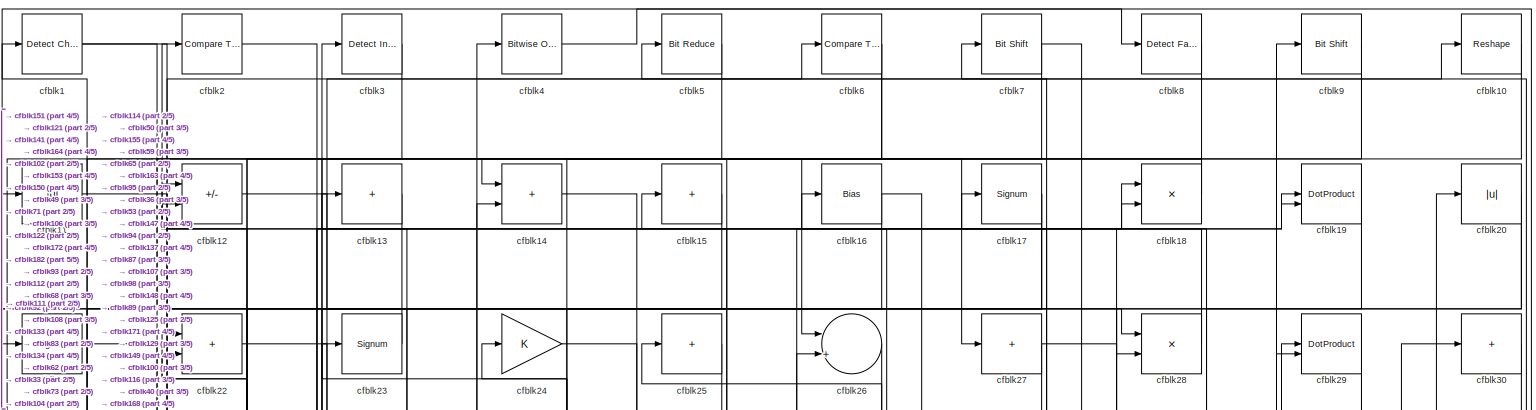
[diagram: root canvas - part 1/5, full width, top band]
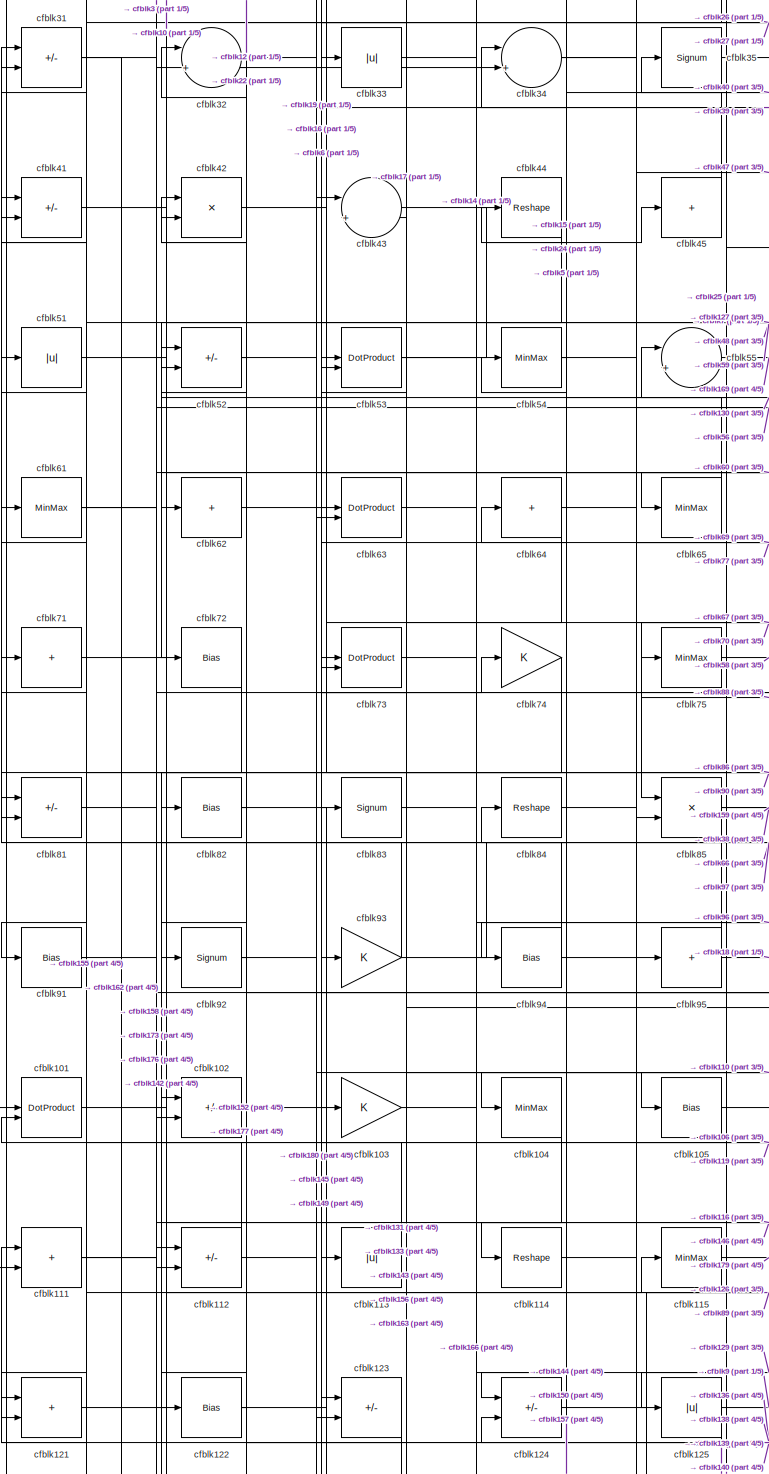
[diagram: root canvas - part 2/5, middle left region]
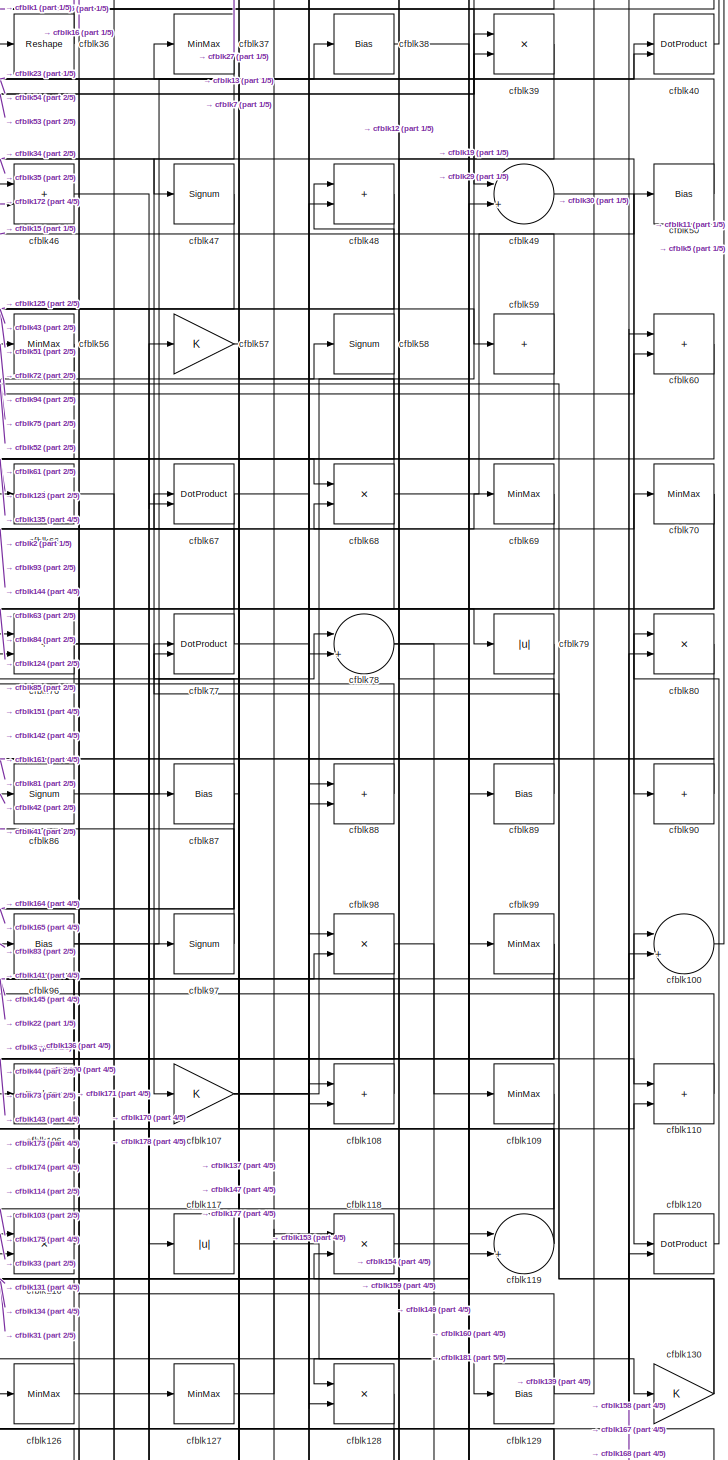
[diagram: root canvas - part 3/5, middle right region]
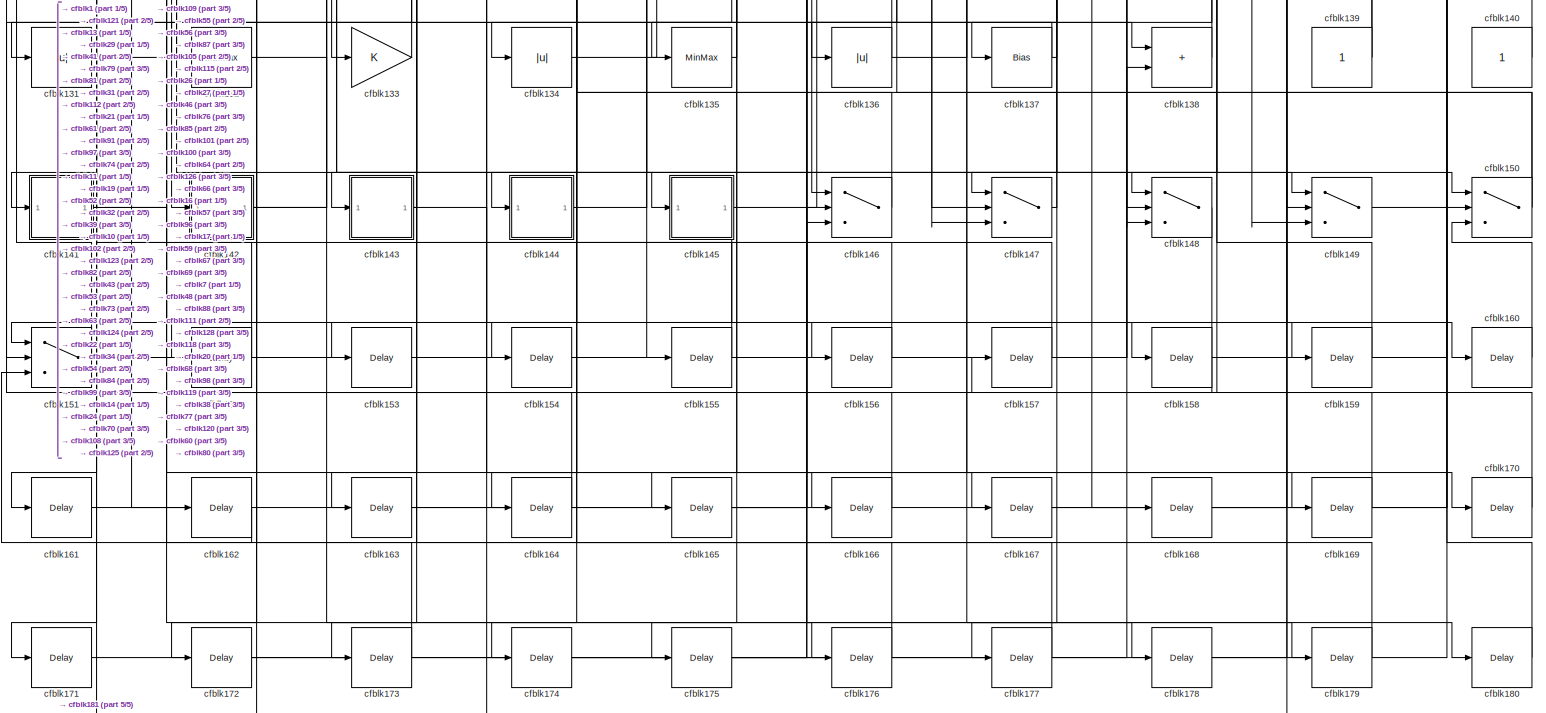
[diagram: root canvas - part 4/5, full width, bottom band]
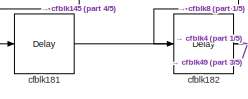
[diagram: root canvas - part 5/5, bottom left region]
MODEL slx_3d7208c3f43e
KIND model
CONFIG AbsTol = auto
CONFIG EnableMultiTasking = off
CONFIG FixedStep = auto
CONFIG MaxStep = auto
CONFIG MinStep = auto
CONFIG RelTol = 1e-3
CONFIG SampleTimeConstraint = Unconstrained
CONFIG SolverName = VariableStepAuto
CONFIG StartTime = 0.0
CONFIG StopTime = 10.0
BLOCK [Reference] cfblk1  REF=simulink/Logic and Bit
Operations/Detect
Change
  LibrarySourceBlock = hdlsllib/Logic and Bit\nOperations/Detect\nChange
  SourceBlock = simulink/Logic and Bit\nOperations/Detect\nChange
  SourceType = Detect Change
BLOCK [Reshape] cfblk10
BLOCK [Sum] cfblk100
  Inputs = |++
BLOCK [DotProduct] cfblk101
  OutDataTypeStr = Inherit: Inherit via internal rule
BLOCK [Sum] cfblk102
  IconShape = rectangular
  Inputs = +-
BLOCK [Gain] cfblk103
BLOCK [MinMax] cfblk104
BLOCK [Bias] cfblk105
  Bias = 0.0
  SaturateOnIntegerOverflow = off
BLOCK [Reshape] cfblk106
BLOCK [Gain] cfblk107
BLOCK [Sum] cfblk108
  IconShape = rectangular
BLOCK [MinMax] cfblk109
BLOCK [Abs] cfblk11
  SaturateOnIntegerOverflow = off
BLOCK [Sum] cfblk110
  IconShape = rectangular
BLOCK [Sum] cfblk111
  IconShape = rectangular
BLOCK [Sum] cfblk112
  IconShape = rectangular
  Inputs = +-
BLOCK [Abs] cfblk113
  SaturateOnIntegerOverflow = off
BLOCK [Reshape] cfblk114
BLOCK [MinMax] cfblk115
BLOCK [Product] cfblk116
  Inputs = */
  RndMeth = Zero
  SaturateOnIntegerOverflow = on
BLOCK [Abs] cfblk117
  SaturateOnIntegerOverflow = off
BLOCK [Product] cfblk118
  Inputs = */
  RndMeth = Zero
  SaturateOnIntegerOverflow = on
BLOCK [Sum] cfblk119
  Inputs = |++
BLOCK [Sum] cfblk12
  IconShape = rectangular
  Inputs = +-
BLOCK [DotProduct] cfblk120
  OutDataTypeStr = Inherit: Inherit via internal rule
BLOCK [Sum] cfblk121
  IconShape = rectangular
BLOCK [Bias] cfblk122
  Bias = 0.0
  SaturateOnIntegerOverflow = off
BLOCK [Sum] cfblk123
  IconShape = rectangular
  Inputs = +-
BLOCK [Sum] cfblk124
  IconShape = rectangular
  Inputs = +-
BLOCK [Abs] cfblk125
  SaturateOnIntegerOverflow = off
BLOCK [MinMax] cfblk126
BLOCK [MinMax] cfblk127
BLOCK [Product] cfblk128
  Inputs = */
  RndMeth = Zero
  SaturateOnIntegerOverflow = on
BLOCK [Bias] cfblk129
  Bias = 0.0
  SaturateOnIntegerOverflow = off
BLOCK [Sum] cfblk13
  IconShape = rectangular
  Inputs = +
BLOCK [Gain] cfblk130
BLOCK [Abs] cfblk131
  SaturateOnIntegerOverflow = off
BLOCK [MinMax] cfblk132
BLOCK [Gain] cfblk133
BLOCK [Abs] cfblk134
  SaturateOnIntegerOverflow = off
BLOCK [MinMax] cfblk135
BLOCK [Abs] cfblk136
  SaturateOnIntegerOverflow = off
BLOCK [Bias] cfblk137
  Bias = 0.0
  SaturateOnIntegerOverflow = off
BLOCK [Sum] cfblk138
  IconShape = rectangular
BLOCK [Constant] cfblk139
  SampleTime = -1
BLOCK [Sum] cfblk14
  IconShape = rectangular
BLOCK [Constant] cfblk140
  SampleTime = -1
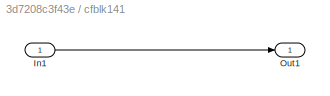
BLOCK [SubSystem] cfblk141
  LibrarySourceBlock = hdlsllib/Ports &\nSubsystems/Subsystem
BLOCK [Inport] cfblk141/In1
BLOCK [Outport] cfblk141/Out1
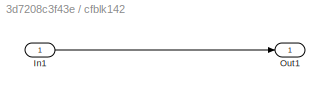
BLOCK [SubSystem] cfblk142
  LibrarySourceBlock = hdlsllib/Ports &\nSubsystems/Subsystem
BLOCK [Inport] cfblk142/In1
BLOCK [Outport] cfblk142/Out1
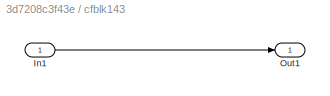
BLOCK [SubSystem] cfblk143
  LibrarySourceBlock = hdlsllib/Ports &\nSubsystems/Subsystem
BLOCK [Inport] cfblk143/In1
BLOCK [Outport] cfblk143/Out1
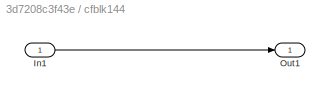
BLOCK [SubSystem] cfblk144
  LibrarySourceBlock = hdlsllib/Ports &\nSubsystems/Subsystem
BLOCK [Inport] cfblk144/In1
BLOCK [Outport] cfblk144/Out1
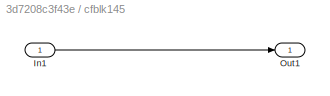
BLOCK [SubSystem] cfblk145
  LibrarySourceBlock = hdlsllib/Ports &\nSubsystems/Subsystem
BLOCK [Inport] cfblk145/In1
BLOCK [Outport] cfblk145/Out1
BLOCK [Switch] cfblk146
  InputSameDT = off
  SaturateOnIntegerOverflow = off
BLOCK [Switch] cfblk147
  InputSameDT = off
  SaturateOnIntegerOverflow = off
BLOCK [Switch] cfblk148
  InputSameDT = off
  SaturateOnIntegerOverflow = off
BLOCK [Switch] cfblk149
  InputSameDT = off
  SaturateOnIntegerOverflow = off
BLOCK [Sum] cfblk15
  IconShape = rectangular
  Inputs = +
BLOCK [Switch] cfblk150
  InputSameDT = off
  SaturateOnIntegerOverflow = off
BLOCK [Switch] cfblk151
  InputSameDT = off
  SaturateOnIntegerOverflow = off
BLOCK [Delay] cfblk152
  InputPortMap = u0
  SampleTime = 1
BLOCK [Delay] cfblk153
  InputPortMap = u0
  SampleTime = 1
BLOCK [Delay] cfblk154
  InputPortMap = u0
  SampleTime = 1
BLOCK [Delay] cfblk155
  InputPortMap = u0
  SampleTime = 1
BLOCK [Delay] cfblk156
  InputPortMap = u0
  SampleTime = 1
BLOCK [Delay] cfblk157
  InputPortMap = u0
  SampleTime = 1
BLOCK [Delay] cfblk158
  InputPortMap = u0
  SampleTime = 1
BLOCK [Delay] cfblk159
  InputPortMap = u0
  SampleTime = 1
BLOCK [Bias] cfblk16
  Bias = 0.0
  SaturateOnIntegerOverflow = off
BLOCK [Delay] cfblk160
  InputPortMap = u0
  SampleTime = 1
BLOCK [Delay] cfblk161
  InputPortMap = u0
  SampleTime = 1
BLOCK [Delay] cfblk162
  InputPortMap = u0
  SampleTime = 1
BLOCK [Delay] cfblk163
  InputPortMap = u0
  SampleTime = 1
BLOCK [Delay] cfblk164
  InputPortMap = u0
  SampleTime = 1
BLOCK [Delay] cfblk165
  InputPortMap = u0
  SampleTime = 1
BLOCK [Delay] cfblk166
  InputPortMap = u0
  SampleTime = 1
BLOCK [Delay] cfblk167
  InputPortMap = u0
  SampleTime = 1
BLOCK [Delay] cfblk168
  InputPortMap = u0
  SampleTime = 1
BLOCK [Delay] cfblk169
  InputPortMap = u0
  SampleTime = 1
BLOCK [Signum] cfblk17
BLOCK [Delay] cfblk170
  InputPortMap = u0
  SampleTime = 1
BLOCK [Delay] cfblk171
  InputPortMap = u0
  SampleTime = 1
BLOCK [Delay] cfblk172
  InputPortMap = u0
  SampleTime = 1
BLOCK [Delay] cfblk173
  InputPortMap = u0
  SampleTime = 1
BLOCK [Delay] cfblk174
  InputPortMap = u0
  SampleTime = 1
BLOCK [Delay] cfblk175
  InputPortMap = u0
  SampleTime = 1
BLOCK [Delay] cfblk176
  InputPortMap = u0
  SampleTime = 1
BLOCK [Delay] cfblk177
  InputPortMap = u0
  SampleTime = 1
BLOCK [Delay] cfblk178
  InputPortMap = u0
  SampleTime = 1
BLOCK [Delay] cfblk179
  InputPortMap = u0
  SampleTime = 1
BLOCK [Product] cfblk18
  Inputs = */
  RndMeth = Zero
  SaturateOnIntegerOverflow = on
BLOCK [Delay] cfblk180
  InputPortMap = u0
  SampleTime = 1
BLOCK [Delay] cfblk181
  InputPortMap = u0
  SampleTime = 1
BLOCK [Delay] cfblk182
  InputPortMap = u0
  SampleTime = 1
BLOCK [DotProduct] cfblk19
  OutDataTypeStr = Inherit: Inherit via internal rule
BLOCK [Reference] cfblk2  REF=hdlsllib/Logic and Bit
Operations/Compare
To Constant
  SourceBlock = hdlsllib/Logic and Bit\nOperations/Compare\nTo Constant
  SourceType = Compare To Constant
BLOCK [Abs] cfblk20
  SaturateOnIntegerOverflow = off
BLOCK [Signum] cfblk21
BLOCK [Sum] cfblk22
  IconShape = rectangular
BLOCK [Signum] cfblk23
BLOCK [Gain] cfblk24
BLOCK [Sum] cfblk25
  IconShape = rectangular
  Inputs = +
BLOCK [Sum] cfblk26
  Inputs = |++
BLOCK [Sum] cfblk27
  IconShape = rectangular
  Inputs = +
BLOCK [Product] cfblk28
  Inputs = */
  RndMeth = Zero
  SaturateOnIntegerOverflow = on
BLOCK [DotProduct] cfblk29
  OutDataTypeStr = Inherit: Inherit via internal rule
BLOCK [Reference] cfblk3  REF=simulink/Logic and Bit
Operations/Detect
Increase
  LibrarySourceBlock = hdlsllib/Logic and Bit\nOperations/Detect\nIncrease
  SourceBlock = simulink/Logic and Bit\nOperations/Detect\nIncrease
  SourceType = Detect Increase
BLOCK [Sum] cfblk30
  IconShape = rectangular
  Inputs = +
BLOCK [Sum] cfblk31
  IconShape = rectangular
  Inputs = +-
BLOCK [Sum] cfblk32
  Inputs = |++
BLOCK [Abs] cfblk33
  SaturateOnIntegerOverflow = off
BLOCK [Sum] cfblk34
  Inputs = |++
BLOCK [Signum] cfblk35
BLOCK [Reshape] cfblk36
BLOCK [MinMax] cfblk37
BLOCK [Bias] cfblk38
  Bias = 0.0
  SaturateOnIntegerOverflow = off
BLOCK [Product] cfblk39
  Inputs = */
  RndMeth = Zero
  SaturateOnIntegerOverflow = on
BLOCK [Reference] cfblk4  REF=simulink/Logic and Bit
Operations/Bitwise
Operator
  LibrarySourceBlock = hdlsllib/Logic and Bit\nOperations/Bitwise\nOperator
  SourceBlock = simulink/Logic and Bit\nOperations/Bitwise\nOperator
  SourceType = Bitwise Operator
BLOCK [DotProduct] cfblk40
  OutDataTypeStr = Inherit: Inherit via internal rule
BLOCK [Sum] cfblk41
  IconShape = rectangular
  Inputs = +-
BLOCK [Product] cfblk42
  Inputs = */
  RndMeth = Zero
  SaturateOnIntegerOverflow = on
BLOCK [Sum] cfblk43
  Inputs = |++
BLOCK [Reshape] cfblk44
BLOCK [Sum] cfblk45
  IconShape = rectangular
  Inputs = +
BLOCK [Sum] cfblk46
  IconShape = rectangular
BLOCK [Signum] cfblk47
BLOCK [Sum] cfblk48
  IconShape = rectangular
BLOCK [Sum] cfblk49
  Inputs = |++
BLOCK [Reference] cfblk5  REF=hdlsllib/Logic and Bit
Operations/Bit Reduce
  SourceBlock = hdlsllib/Logic and Bit\nOperations/Bit Reduce
  SourceType = Bit Reduce
BLOCK [Bias] cfblk50
  Bias = 0.0
  SaturateOnIntegerOverflow = off
BLOCK [Abs] cfblk51
  SaturateOnIntegerOverflow = off
BLOCK [Sum] cfblk52
  IconShape = rectangular
  Inputs = +-
BLOCK [DotProduct] cfblk53
  OutDataTypeStr = Inherit: Inherit via internal rule
BLOCK [MinMax] cfblk54
BLOCK [Sum] cfblk55
  Inputs = |++
BLOCK [MinMax] cfblk56
BLOCK [Gain] cfblk57
BLOCK [Signum] cfblk58
BLOCK [Sum] cfblk59
  IconShape = rectangular
  Inputs = +
BLOCK [Reference] cfblk6  REF=hdlsllib/Logic and Bit
Operations/Compare
To Zero
  SourceBlock = hdlsllib/Logic and Bit\nOperations/Compare\nTo Zero
  SourceType = Compare To Zero
BLOCK [Sum] cfblk60
  IconShape = rectangular
BLOCK [MinMax] cfblk61
BLOCK [Sum] cfblk62
  IconShape = rectangular
  Inputs = +
BLOCK [DotProduct] cfblk63
  OutDataTypeStr = Inherit: Inherit via internal rule
BLOCK [Sum] cfblk64
  IconShape = rectangular
  Inputs = +
BLOCK [MinMax] cfblk65
BLOCK [Sum] cfblk66
  IconShape = rectangular
  Inputs = +
BLOCK [DotProduct] cfblk67
  OutDataTypeStr = Inherit: Inherit via internal rule
BLOCK [Product] cfblk68
  Inputs = */
  RndMeth = Zero
  SaturateOnIntegerOverflow = on
BLOCK [MinMax] cfblk69
BLOCK [Reference] cfblk7  REF=hdlsllib/Logic and Bit
Operations/Bit Shift
  SourceBlock = hdlsllib/Logic and Bit\nOperations/Bit Shift
  SourceType = Bit Shift
BLOCK [MinMax] cfblk70
BLOCK [Sum] cfblk71
  IconShape = rectangular
  Inputs = +
BLOCK [Bias] cfblk72
  Bias = 0.0
  SaturateOnIntegerOverflow = off
BLOCK [DotProduct] cfblk73
  OutDataTypeStr = Inherit: Inherit via internal rule
BLOCK [Gain] cfblk74
BLOCK [MinMax] cfblk75
BLOCK [Sum] cfblk76
  IconShape = rectangular
BLOCK [DotProduct] cfblk77
  OutDataTypeStr = Inherit: Inherit via internal rule
BLOCK [Sum] cfblk78
  Inputs = |++
BLOCK [Abs] cfblk79
  SaturateOnIntegerOverflow = off
BLOCK [Reference] cfblk8  REF=hdlsllib/Logic and Bit
Operations/Detect Fall
Negative
  SourceBlock = hdlsllib/Logic and Bit\nOperations/Detect Fall\nNegative
  SourceType = Detect Fall Negative
BLOCK [Product] cfblk80
  Inputs = */
  RndMeth = Zero
  SaturateOnIntegerOverflow = on
BLOCK [Sum] cfblk81
  IconShape = rectangular
  Inputs = +-
BLOCK [Bias] cfblk82
  Bias = 0.0
  SaturateOnIntegerOverflow = off
BLOCK [Signum] cfblk83
BLOCK [Reshape] cfblk84
BLOCK [Product] cfblk85
  Inputs = */
  RndMeth = Zero
  SaturateOnIntegerOverflow = on
BLOCK [Signum] cfblk86
BLOCK [Bias] cfblk87
  Bias = 0.0
  SaturateOnIntegerOverflow = off
BLOCK [Sum] cfblk88
  IconShape = rectangular
BLOCK [Bias] cfblk89
  Bias = 0.0
  SaturateOnIntegerOverflow = off
BLOCK [Reference] cfblk9  REF=hdlsllib/Logic and Bit
Operations/Bit Shift
  SourceBlock = hdlsllib/Logic and Bit\nOperations/Bit Shift
  SourceType = Bit Shift
BLOCK [Sum] cfblk90
  IconShape = rectangular
  Inputs = +
BLOCK [Bias] cfblk91
  Bias = 0.0
  SaturateOnIntegerOverflow = off
BLOCK [Signum] cfblk92
BLOCK [Gain] cfblk93
BLOCK [Bias] cfblk94
  Bias = 0.0
  SaturateOnIntegerOverflow = off
BLOCK [Sum] cfblk95
  IconShape = rectangular
  Inputs = +
BLOCK [Bias] cfblk96
  Bias = 0.0
  SaturateOnIntegerOverflow = off
BLOCK [Signum] cfblk97
BLOCK [Product] cfblk98
  Inputs = */
  RndMeth = Zero
  SaturateOnIntegerOverflow = on
BLOCK [MinMax] cfblk99
LINE cfblk100:1 -> cfblk11:1
LINE cfblk101:1 -> cfblk146:1
LINE cfblk102:1 -> cfblk149:1
LINE cfblk103:1 -> cfblk129:1
LINE cfblk104:1 -> cfblk123:1
LINE cfblk105:1 -> cfblk138:1
NET cfblk106:1 -> cfblk22:2, cfblk42:1, cfblk44:1
NET cfblk107:1 -> cfblk110:2, cfblk19:2, cfblk29:1
LINE cfblk108:1 -> cfblk3:1
LINE cfblk109:1 -> cfblk175:1
LINE cfblk10:1 -> cfblk133:1
LINE cfblk110:1 -> cfblk73:2
NET cfblk111:1 -> cfblk34:2, cfblk74:1
NET cfblk112:1 -> cfblk101:2, cfblk19:1
LINE cfblk113:1 -> cfblk71:1
LINE cfblk114:1 -> cfblk106:1
LINE cfblk115:1 -> cfblk179:1
NET cfblk116:1 -> cfblk16:1, cfblk42:2
LINE cfblk117:1 -> cfblk130:1
LINE cfblk118:1 -> cfblk119:2
NET cfblk119:1 -> cfblk103:1, cfblk46:1
LINE cfblk11:1 -> cfblk150:1
LINE cfblk120:1 -> cfblk80:1
LINE cfblk121:1 -> cfblk43:1
NET cfblk122:1 -> cfblk115:1, cfblk12:2
LINE cfblk123:1 -> cfblk131:1
LINE cfblk124:1 -> cfblk89:1
NET cfblk125:1 -> cfblk151:2, cfblk9:1
NET cfblk126:1 -> cfblk31:2, cfblk98:2
LINE cfblk127:1 -> cfblk118:1
LINE cfblk128:1 -> cfblk154:1
NET cfblk129:1 -> cfblk30:1, cfblk36:1
LINE cfblk12:1 -> cfblk28:1
NET cfblk130:1 -> cfblk52:1, cfblk77:2
LINE cfblk131:1 -> cfblk108:2
LINE cfblk132:1 -> cfblk149:2
LINE cfblk133:1 -> cfblk82:1
LINE cfblk134:1 -> cfblk108:1
LINE cfblk135:1 -> cfblk55:1
NET cfblk136:1 -> cfblk57:1, cfblk64:1
NET cfblk137:1 -> cfblk132:1, cfblk17:1
LINE cfblk138:1 -> cfblk111:1
NET cfblk139:1 -> cfblk55:2, cfblk77:1
LINE cfblk13:1 -> cfblk141:1
LINE cfblk140:1 -> cfblk102:1
LINE cfblk141/In1:1 -> cfblk141/Out1:1
NET cfblk141:1 -> cfblk167:1, cfblk97:1
LINE cfblk142/In1:1 -> cfblk142/Out1:1
NET cfblk142:1 -> cfblk39:1, cfblk76:2
LINE cfblk143/In1:1 -> cfblk143/Out1:1
NET cfblk143:1 -> cfblk156:1, cfblk73:1
LINE cfblk144/In1:1 -> cfblk144/Out1:1
LINE cfblk144:1 -> cfblk70:1
LINE cfblk145/In1:1 -> cfblk145/Out1:1
NET cfblk145:1 -> cfblk100:1, cfblk181:1
LINE cfblk146:1 -> cfblk54:1
LINE cfblk147:1 -> cfblk67:1
LINE cfblk148:1 -> cfblk157:1
LINE cfblk149:1 -> cfblk20:1
LINE cfblk14:1 -> cfblk155:1
NET cfblk150:1 -> cfblk126:1, cfblk84:1
NET cfblk151:1 -> cfblk27:1, cfblk76:1
LINE cfblk152:1 -> cfblk121:2
LINE cfblk153:1 -> cfblk48:2
LINE cfblk154:1 -> cfblk88:1
LINE cfblk155:1 -> cfblk81:2
LINE cfblk156:1 -> cfblk43:2
LINE cfblk157:1 -> cfblk124:2
LINE cfblk158:1 -> cfblk100:2
LINE cfblk159:1 -> cfblk118:2
LINE cfblk15:1 -> cfblk104:1
LINE cfblk160:1 -> cfblk150:3
LINE cfblk161:1 -> cfblk119:1
LINE cfblk162:1 -> cfblk151:3
LINE cfblk163:1 -> cfblk26:2
LINE cfblk164:1 -> cfblk1:1
LINE cfblk165:1 -> cfblk146:3
LINE cfblk166:1 -> cfblk41:2
LINE cfblk167:1 -> cfblk60:1
LINE cfblk168:1 -> cfblk80:2
LINE cfblk169:1 -> cfblk101:1
NET cfblk16:1 -> cfblk147:2, cfblk83:1
LINE cfblk170:1 -> cfblk68:2
LINE cfblk171:1 -> cfblk29:2
LINE cfblk172:1 -> cfblk46:2
LINE cfblk173:1 -> cfblk112:1
LINE cfblk174:1 -> cfblk146:2
LINE cfblk175:1 -> cfblk138:2
LINE cfblk176:1 -> cfblk34:1
LINE cfblk177:1 -> cfblk52:2
LINE cfblk178:1 -> cfblk120:2
LINE cfblk179:1 -> cfblk53:2
NET cfblk17:1 -> cfblk111:2, cfblk33:1, cfblk62:1
LINE cfblk180:1 -> cfblk150:2
LINE cfblk181:1 -> cfblk49:2
LINE cfblk182:1 -> cfblk4:1
LINE cfblk18:1 -> cfblk14:1
LINE cfblk19:1 -> cfblk172:1
NET cfblk1:1 -> cfblk28:2, cfblk49:1
NET cfblk20:1 -> cfblk148:1, cfblk148:3
LINE cfblk21:1 -> cfblk153:1
LINE cfblk22:1 -> cfblk134:1
LINE cfblk23:1 -> cfblk21:1
LINE cfblk24:1 -> cfblk148:2
LINE cfblk25:1 -> cfblk122:1
LINE cfblk26:1 -> cfblk53:1
NET cfblk27:1 -> cfblk94:1, cfblk98:1
LINE cfblk28:1 -> cfblk2:1
LINE cfblk29:1 -> cfblk151:1
LINE cfblk2:1 -> cfblk68:1
LINE cfblk30:1 -> cfblk116:2
NET cfblk31:1 -> cfblk162:1, cfblk67:2
LINE cfblk32:1 -> cfblk180:1
LINE cfblk33:1 -> cfblk116:1
NET cfblk34:1 -> cfblk110:1, cfblk47:1
LINE cfblk35:1 -> cfblk90:1
LINE cfblk36:1 -> cfblk25:1
LINE cfblk37:1 -> cfblk107:1
LINE cfblk38:1 -> cfblk160:1
LINE cfblk39:1 -> cfblk128:1
LINE cfblk3:1 -> cfblk102:2
LINE cfblk40:1 -> cfblk5:1
LINE cfblk41:1 -> cfblk63:2
LINE cfblk42:1 -> cfblk86:1
LINE cfblk43:1 -> cfblk127:1
LINE cfblk44:1 -> cfblk91:1
LINE cfblk45:1 -> cfblk35:1
LINE cfblk46:1 -> cfblk117:1
LINE cfblk47:1 -> cfblk72:1
LINE cfblk48:1 -> cfblk125:1
LINE cfblk49:1 -> cfblk120:1
LINE cfblk4:1 -> cfblk8:1
LINE cfblk50:1 -> cfblk23:1
LINE cfblk51:1 -> cfblk59:1
NET cfblk52:1 -> cfblk105:1, cfblk152:1
NET cfblk53:1 -> cfblk39:2, cfblk45:1
NET cfblk54:1 -> cfblk144:1, cfblk40:2
LINE cfblk55:1 -> cfblk169:1
LINE cfblk56:1 -> cfblk135:1
LINE cfblk57:1 -> cfblk147:1
NET cfblk58:1 -> cfblk123:2, cfblk48:1
NET cfblk59:1 -> cfblk15:1, cfblk177:1
LINE cfblk5:1 -> cfblk114:1
LINE cfblk60:1 -> cfblk93:1
NET cfblk61:1 -> cfblk158:1, cfblk60:2
LINE cfblk62:1 -> cfblk6:1
LINE cfblk63:1 -> cfblk166:1
NET cfblk64:1 -> cfblk163:1, cfblk95:1
LINE cfblk65:1 -> cfblk24:1
NET cfblk66:1 -> cfblk136:1, cfblk87:1
NET cfblk67:1 -> cfblk79:1, cfblk85:1
NET cfblk68:1 -> cfblk128:2, cfblk37:1, cfblk50:1
LINE cfblk69:1 -> cfblk137:1
NET cfblk6:1 -> cfblk121:1, cfblk92:1
NET cfblk70:1 -> cfblk124:1, cfblk85:2
LINE cfblk71:1 -> cfblk10:1
LINE cfblk72:1 -> cfblk112:2
LINE cfblk73:1 -> cfblk14:2
LINE cfblk74:1 -> cfblk142:1
LINE cfblk75:1 -> cfblk58:1
NET cfblk76:1 -> cfblk147:3, cfblk170:1, cfblk171:1
NET cfblk77:1 -> cfblk63:1, cfblk78:2
NET cfblk78:1 -> cfblk109:1, cfblk99:1
LINE cfblk79:1 -> cfblk161:1
NET cfblk7:1 -> cfblk168:1, cfblk65:1
LINE cfblk80:1 -> cfblk88:2
LINE cfblk81:1 -> cfblk113:1
NET cfblk82:1 -> cfblk145:1, cfblk32:2
LINE cfblk83:1 -> cfblk96:1
LINE cfblk84:1 -> cfblk69:1
NET cfblk85:1 -> cfblk159:1, cfblk38:1
LINE cfblk86:1 -> cfblk78:1
NET cfblk87:1 -> cfblk13:1, cfblk164:1, cfblk165:1, cfblk7:1
LINE cfblk88:1 -> cfblk75:1
LINE cfblk89:1 -> cfblk12:1
LINE cfblk8:1 -> cfblk182:1
LINE cfblk90:1 -> cfblk81:1
NET cfblk91:1 -> cfblk176:1, cfblk51:1
NET cfblk92:1 -> cfblk18:2, cfblk32:1
NET cfblk93:1 -> cfblk22:1, cfblk66:1
NET cfblk94:1 -> cfblk56:1, cfblk61:1
NET cfblk95:1 -> cfblk18:1, cfblk31:1
NET cfblk96:1 -> cfblk178:1, cfblk40:1
LINE cfblk97:1 -> cfblk41:1
NET cfblk98:1 -> cfblk143:1, cfblk149:3
NET cfblk99:1 -> cfblk173:1, cfblk174:1
LINE cfblk9:1 -> cfblk26:1
note: NET lines group one-source signal fan-out (src -> all destinations, sorted); 1:1 wires keep LINE
